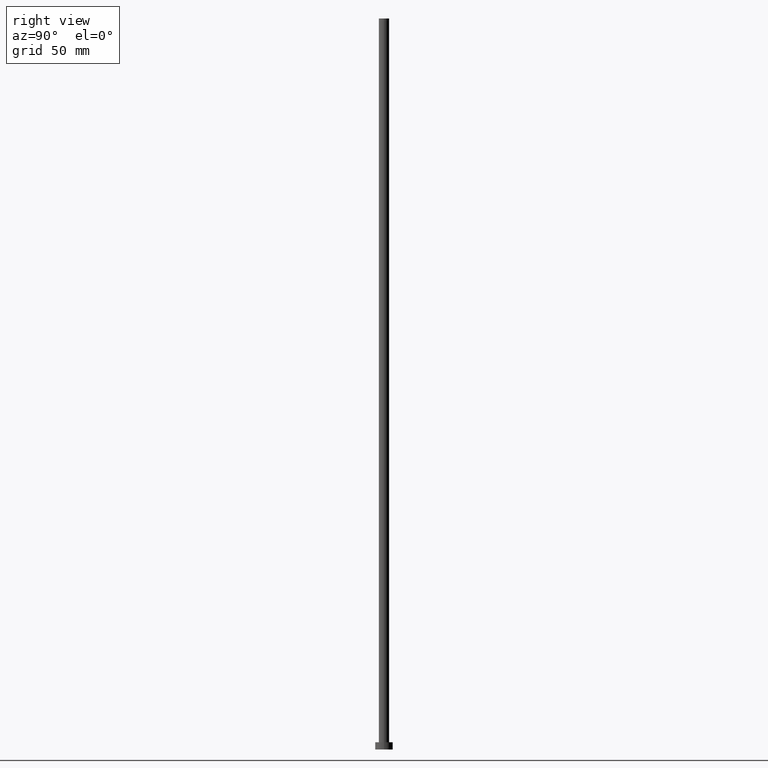
[diagram: clean part render]
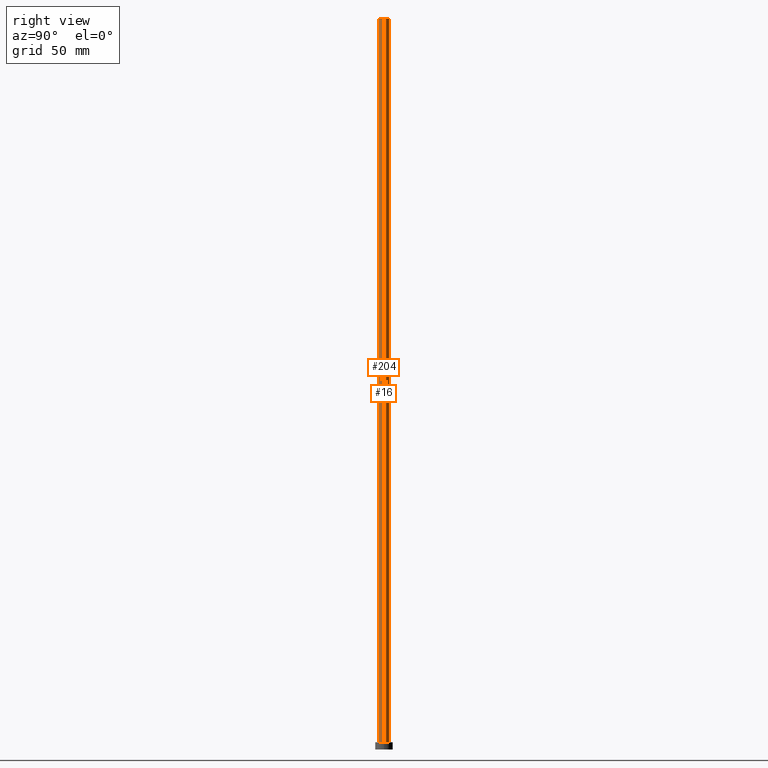
[diagram: same view with one multi-face feature highlighted, each face labeled with its STEP entity id]
A machine part, right view. The highlighted faces form ONE feature: a constant-radius fillet chain: 2 tangent blend faces with common blend radius 3.5 mm. The faces share edges in the B-rep.
Their STEP definitions:
[1] entity #204 (Cylinder):
#4 = DIRECTION ( 'NONE',  ( 1.000000000000000000, 0.000000000000000000, 0.000000000000000000 ) ) ;
#20 = ORIENTED_EDGE ( 'NONE', *, *, #91, .T. ) ;
#22 = DIRECTION ( 'NONE',  ( -0.000000000000000000, -0.000000000000000000, -1.000000000000000000 ) ) ;
#27 = CYLINDRICAL_SURFACE ( 'NONE', #88, 3.500000000000000000 ) ;
#43 = CARTESIAN_POINT ( 'NONE',  ( 0.000000000000000000, 0.000000000000000000, 5.000000000000000000 ) ) ;
#51 = CIRCLE ( 'NONE', #189, 3.500000000000000000 ) ;
#59 = CARTESIAN_POINT ( 'NONE',  ( -3.500000000000000000, 0.000000000000000000, 5.000000000000000000 ) ) ;
#63 = CARTESIAN_POINT ( 'NONE',  ( 3.500000000000000000, 4.286263797015736595E-16, 5.000000000000000000 ) ) ;
#65 = CIRCLE ( 'NONE', #128, 3.500000000000000000 ) ;
#71 = EDGE_CURVE ( 'NONE', #97, #226, #65, .T. ) ;
#88 = AXIS2_PLACEMENT_3D ( 'NONE', #179, #255, #163 ) ;
#91 = EDGE_CURVE ( 'NONE', #154, #150, #51, .T. ) ;
#96 = LINE ( 'NONE', #251, #241 ) ;
#97 = VERTEX_POINT ( 'NONE', #202 ) ;
#119 = DIRECTION ( 'NONE',  ( -0.000000000000000000, -0.000000000000000000, -1.000000000000000000 ) ) ;
#126 = CARTESIAN_POINT ( 'NONE',  ( 0.000000000000000000, 0.000000000000000000, 500.0000000000000000 ) ) ;
#128 = AXIS2_PLACEMENT_3D ( 'NONE', #126, #170, #183 ) ;
#138 = ORIENTED_EDGE ( 'NONE', *, *, #200, .F. ) ;
#139 = LINE ( 'NONE', #237, #231 ) ;
#150 = VERTEX_POINT ( 'NONE', #63 ) ;
#154 = VERTEX_POINT ( 'NONE', #59 ) ;
#161 = CARTESIAN_POINT ( 'NONE',  ( 3.500000000000000000, 4.286263797015736595E-16, 500.0000000000000000 ) ) ;
#163 = DIRECTION ( 'NONE',  ( -1.000000000000000000, 0.000000000000000000, 0.000000000000000000 ) ) ;
#170 = DIRECTION ( 'NONE',  ( 0.000000000000000000, 0.000000000000000000, 1.000000000000000000 ) ) ;
#176 = ORIENTED_EDGE ( 'NONE', *, *, #71, .F. ) ;
#179 = CARTESIAN_POINT ( 'NONE',  ( 0.000000000000000000, 0.000000000000000000, 500.0000000000000000 ) ) ;
#183 = DIRECTION ( 'NONE',  ( 1.000000000000000000, 0.000000000000000000, 0.000000000000000000 ) ) ;
#189 = AXIS2_PLACEMENT_3D ( 'NONE', #43, #254, #4 ) ;
#196 = EDGE_LOOP ( 'NONE', ( #138, #176, #232, #20 ) ) ;
#200 = EDGE_CURVE ( 'NONE', #226, #150, #96, .T. ) ;
#202 = CARTESIAN_POINT ( 'NONE',  ( -3.500000000000000000, 0.000000000000000000, 500.0000000000000000 ) ) ;
#204 = ADVANCED_FACE ( 'NONE', ( #221 ), #27, .T. ) ;
#221 = FACE_OUTER_BOUND ( 'NONE', #196, .T. ) ;
#226 = VERTEX_POINT ( 'NONE', #161 ) ;
#231 = VECTOR ( 'NONE', #22, 1000.000000000000000 ) ;
#232 = ORIENTED_EDGE ( 'NONE', *, *, #247, .T. ) ;
#237 = CARTESIAN_POINT ( 'NONE',  ( -3.500000000000000000, 0.000000000000000000, 500.0000000000000000 ) ) ;
#241 = VECTOR ( 'NONE', #119, 1000.000000000000000 ) ;
#247 = EDGE_CURVE ( 'NONE', #97, #154, #139, .T. ) ;
#251 = CARTESIAN_POINT ( 'NONE',  ( 3.500000000000000000, 4.286263797015736595E-16, 500.0000000000000000 ) ) ;
#254 = DIRECTION ( 'NONE',  ( 0.000000000000000000, 0.000000000000000000, 1.000000000000000000 ) ) ;
#255 = DIRECTION ( 'NONE',  ( -0.000000000000000000, -0.000000000000000000, -1.000000000000000000 ) ) ;
[2] entity #16 (Cylinder):
#8 = AXIS2_PLACEMENT_3D ( 'NONE', #82, #101, #44 ) ;
#16 = ADVANCED_FACE ( 'NONE', ( #238 ), #33, .T. ) ;
#17 = ORIENTED_EDGE ( 'NONE', *, *, #153, .T. ) ;
#19 = EDGE_CURVE ( 'NONE', #226, #97, #47, .T. ) ;
#21 = DIRECTION ( 'NONE',  ( 1.000000000000000000, 0.000000000000000000, 0.000000000000000000 ) ) ;
#22 = DIRECTION ( 'NONE',  ( -0.000000000000000000, -0.000000000000000000, -1.000000000000000000 ) ) ;
#33 = CYLINDRICAL_SURFACE ( 'NONE', #149, 3.500000000000000000 ) ;
#44 = DIRECTION ( 'NONE',  ( 1.000000000000000000, 0.000000000000000000, 0.000000000000000000 ) ) ;
#47 = CIRCLE ( 'NONE', #8, 3.500000000000000000 ) ;
#57 = CIRCLE ( 'NONE', #159, 3.500000000000000000 ) ;
#59 = CARTESIAN_POINT ( 'NONE',  ( -3.500000000000000000, 0.000000000000000000, 5.000000000000000000 ) ) ;
#61 = DIRECTION ( 'NONE',  ( 0.000000000000000000, 0.000000000000000000, 1.000000000000000000 ) ) ;
#63 = CARTESIAN_POINT ( 'NONE',  ( 3.500000000000000000, 4.286263797015736595E-16, 5.000000000000000000 ) ) ;
#67 = CARTESIAN_POINT ( 'NONE',  ( 0.000000000000000000, 0.000000000000000000, 500.0000000000000000 ) ) ;
#82 = CARTESIAN_POINT ( 'NONE',  ( 0.000000000000000000, 0.000000000000000000, 500.0000000000000000 ) ) ;
#90 = DIRECTION ( 'NONE',  ( -1.000000000000000000, 0.000000000000000000, 0.000000000000000000 ) ) ;
#94 = ORIENTED_EDGE ( 'NONE', *, *, #19, .F. ) ;
#96 = LINE ( 'NONE', #251, #241 ) ;
#97 = VERTEX_POINT ( 'NONE', #202 ) ;
#101 = DIRECTION ( 'NONE',  ( 0.000000000000000000, 0.000000000000000000, 1.000000000000000000 ) ) ;
#119 = DIRECTION ( 'NONE',  ( -0.000000000000000000, -0.000000000000000000, -1.000000000000000000 ) ) ;
#121 = DIRECTION ( 'NONE',  ( -0.000000000000000000, -0.000000000000000000, -1.000000000000000000 ) ) ;
#139 = LINE ( 'NONE', #237, #231 ) ;
#149 = AXIS2_PLACEMENT_3D ( 'NONE', #67, #121, #90 ) ;
#150 = VERTEX_POINT ( 'NONE', #63 ) ;
#153 = EDGE_CURVE ( 'NONE', #150, #154, #57, .T. ) ;
#154 = VERTEX_POINT ( 'NONE', #59 ) ;
#157 = CARTESIAN_POINT ( 'NONE',  ( 0.000000000000000000, 0.000000000000000000, 5.000000000000000000 ) ) ;
#159 = AXIS2_PLACEMENT_3D ( 'NONE', #157, #61, #21 ) ;
#161 = CARTESIAN_POINT ( 'NONE',  ( 3.500000000000000000, 4.286263797015736595E-16, 500.0000000000000000 ) ) ;
#174 = ORIENTED_EDGE ( 'NONE', *, *, #247, .F. ) ;
#193 = EDGE_LOOP ( 'NONE', ( #94, #252, #17, #174 ) ) ;
#200 = EDGE_CURVE ( 'NONE', #226, #150, #96, .T. ) ;
#202 = CARTESIAN_POINT ( 'NONE',  ( -3.500000000000000000, 0.000000000000000000, 500.0000000000000000 ) ) ;
#226 = VERTEX_POINT ( 'NONE', #161 ) ;
#231 = VECTOR ( 'NONE', #22, 1000.000000000000000 ) ;
#237 = CARTESIAN_POINT ( 'NONE',  ( -3.500000000000000000, 0.000000000000000000, 500.0000000000000000 ) ) ;
#238 = FACE_OUTER_BOUND ( 'NONE', #193, .T. ) ;
#241 = VECTOR ( 'NONE', #119, 1000.000000000000000 ) ;
#247 = EDGE_CURVE ( 'NONE', #97, #154, #139, .T. ) ;
#251 = CARTESIAN_POINT ( 'NONE',  ( 3.500000000000000000, 4.286263797015736595E-16, 500.0000000000000000 ) ) ;
#252 = ORIENTED_EDGE ( 'NONE', *, *, #200, .T. ) ;